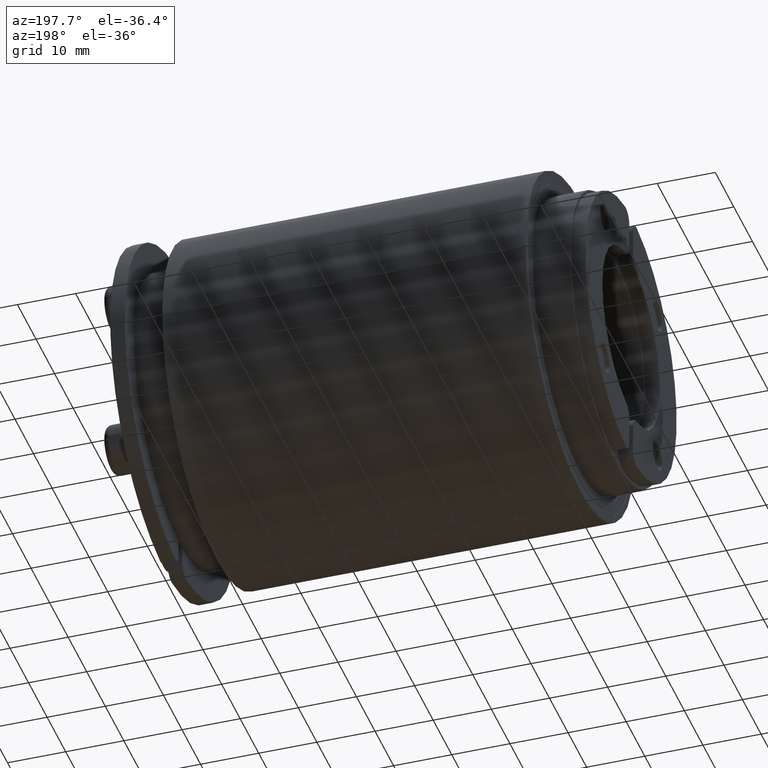
[diagram: clean part render]
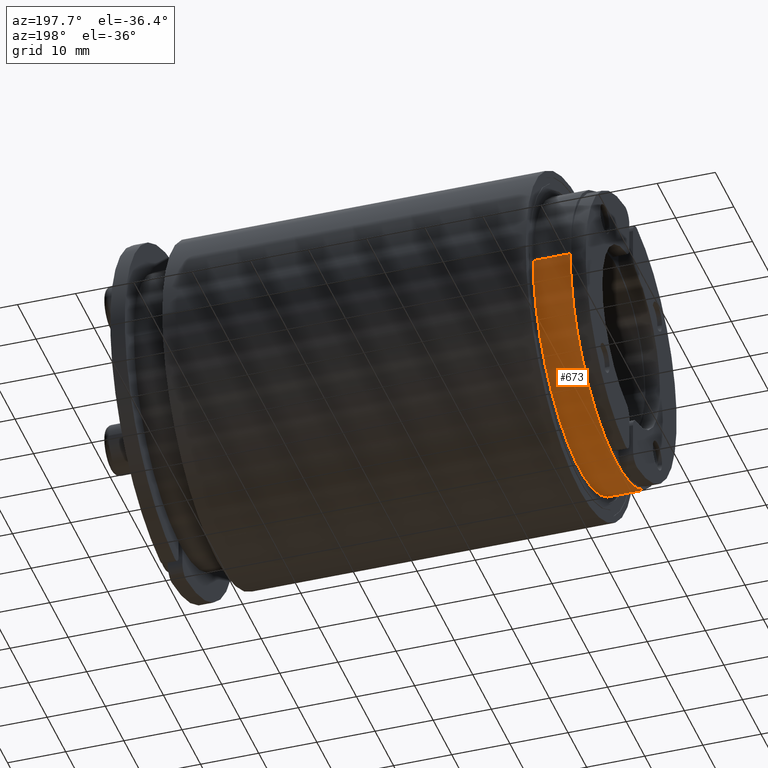
[diagram: same view with one face highlighted and labeled with its STEP entity id]
A machine part, auxiliary view. The second image highlights one B-rep face of the part: STEP entity #673.
In plain terms, the highlighted cylindrical surface (partial cylindrical patch) has radius 25 mm, axis along (1, 0, 0).
Its self-contained STEP definition (entity closure, byte-faithful):
#632=CARTESIAN_POINT('',(0.0,0.0,0.0));
#633=DIRECTION('',(1.0,0.0,0.0));
#634=DIRECTION('',(0.0,-1.0,0.0));
#635=AXIS2_PLACEMENT_3D('',#632,#633,#634);
#636=CYLINDRICAL_SURFACE('',#635,25.0);
#637=CARTESIAN_POINT('',(-37.500000000000000,-25.0,3.061516E-015));
#638=VERTEX_POINT('',#637);
#639=CARTESIAN_POINT('',(-31.150000000000006,-25.0,3.061516E-015));
#640=VERTEX_POINT('',#639);
#641=CARTESIAN_POINT('',(-37.500000000000000,-25.0,3.061516E-015));
#642=DIRECTION('',(1.0,0.0,0.0));
#643=VECTOR('',#642,6.349999999999994);
#644=LINE('',#641,#643);
#645=EDGE_CURVE('',#638,#640,#644,.T.);
#646=ORIENTED_EDGE('',*,*,#645,.F.);
#647=CARTESIAN_POINT('',(-37.500000000000000,25.0,3.061516E-015));
#648=VERTEX_POINT('',#647);
#649=CARTESIAN_POINT('',(-37.500000000000000,0.0,0.0));
#650=DIRECTION('',(1.0,0.0,0.0));
#651=DIRECTION('',(0.0,-1.0,0.0));
#652=AXIS2_PLACEMENT_3D('',#649,#650,#651);
#653=CIRCLE('',#652,25.0);
#654=EDGE_CURVE('',#638,#648,#653,.T.);
#655=ORIENTED_EDGE('',*,*,#654,.T.);
#656=CARTESIAN_POINT('',(-31.150000000000002,25.0,3.061516E-015));
#657=VERTEX_POINT('',#656);
#658=CARTESIAN_POINT('',(-31.150000000000002,25.0,3.061516E-015));
#659=DIRECTION('',(-1.0,0.0,0.0));
#660=VECTOR('',#659,6.349999999999998);
#661=LINE('',#658,#660);
#662=EDGE_CURVE('',#657,#648,#661,.T.);
#663=ORIENTED_EDGE('',*,*,#662,.F.);
#664=CARTESIAN_POINT('',(-31.150000000000002,0.0,0.0));
#665=DIRECTION('',(-1.0,0.0,0.0));
#666=DIRECTION('',(0.0,-1.0,0.0));
#667=AXIS2_PLACEMENT_3D('',#664,#665,#666);
#668=CIRCLE('',#667,25.0);
#669=EDGE_CURVE('',#657,#640,#668,.T.);
#670=ORIENTED_EDGE('',*,*,#669,.T.);
#671=EDGE_LOOP('',(#646,#655,#663,#670));
#672=FACE_OUTER_BOUND('',#671,.T.);
#673=ADVANCED_FACE('',(#672),#636,.T.);